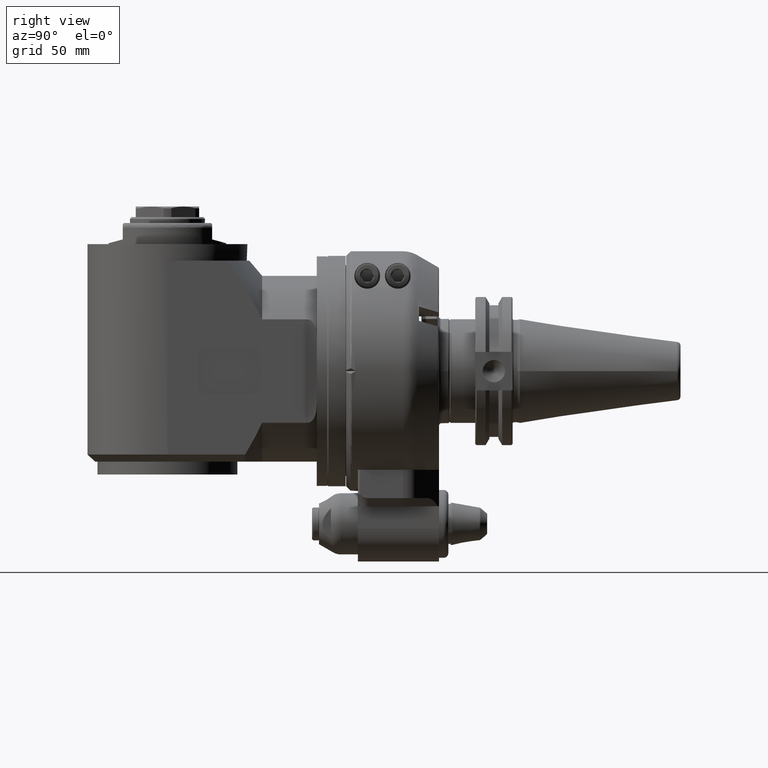
[diagram: clean part render]
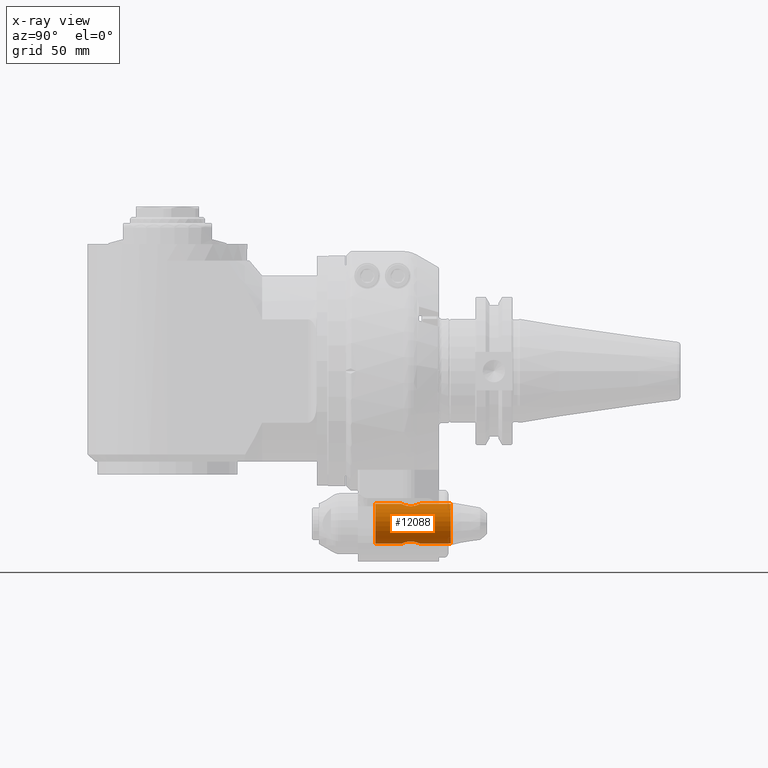
[diagram: x-ray — body ghosted, one internal face saturated and labeled with its STEP entity id]
A machine part, right view, then the same camera in x-ray: the body is ghosted and one INTERNAL B-rep face — a face not visible from any outside direction — is saturated and labeled: STEP entity #12088.
In plain terms, the highlighted cylindrical surface (bore or boss wall) has radius 8.5 mm, axis along (-0, 1, -0).
Its self-contained STEP definition (entity closure, byte-faithful):
#250=B_SPLINE_CURVE_WITH_KNOTS('',3,(#21699,#21700,#21701,#21702,#21703,
#21704,#21705,#21706,#21707,#21708),.UNSPECIFIED.,.F.,.F.,(4,2,2,2,4),(0.613430912820706,
0.766629647538083,0.919828382255461,1.07334510394844,1.22686182564141),
 .UNSPECIFIED.);
#251=B_SPLINE_CURVE_WITH_KNOTS('',3,(#21710,#21711,#21712,#21713,#21714,
#21715,#21716,#21717,#21718,#21719),.UNSPECIFIED.,.F.,.F.,(4,2,2,2,4),(-1.22686182564141,
-1.07334510394844,-0.919828382255461,-0.766629647538084,-0.613430912820706),
 .UNSPECIFIED.);
#252=B_SPLINE_CURVE_WITH_KNOTS('',3,(#21721,#21722,#21723,#21724,#21725,
#21726,#21727,#21728,#21729,#21730,#21731,#21732,#21733,#21734,#21735,#21736,
#21737,#21738,#21739),.UNSPECIFIED.,.F.,.F.,(4,2,2,2,3,2,2,2,4),(-0.613430912820706,
-0.460232178103329,-0.307033443385951,-0.153516721692975,0.,0.153516721692975,
0.307033443385951,0.460232178103328,0.613430912820706),.UNSPECIFIED.);
#253=B_SPLINE_CURVE_WITH_KNOTS('',3,(#21741,#21742,#21743,#21744,#21745,
#21746,#21747,#21748,#21749,#21750,#21751,#21752,#21753,#21754,#21755,#21756,
#21757,#21758,#21759,#21760,#21761,#21762,#21763,#21764,#21765,#21766,#21767,
#21768,#21769,#21770,#21771,#21772,#21773,#21774),.UNSPECIFIED.,.T.,.F.,
(4,2,2,2,2,2,2,2,2,2,2,2,2,2,2,2,4),(-2.45372365128282,-2.30020692958985,
-2.14669020789687,-1.9934914731795,-1.84029273846212,-1.68709400374474,
-1.53389526902736,-1.38037854733439,-1.22686182564141,-1.07334510394844,
-0.919828382255461,-0.766629647538084,-0.613430912820706,-0.460232178103329,
-0.307033443385951,-0.153516721692975,0.),.UNSPECIFIED.);
#1293=LINE('',#21697,#2067);
#1294=LINE('',#21720,#2068);
#2067=VECTOR('',#17116,8.5);
#2068=VECTOR('',#17117,8.5);
#2293=CYLINDRICAL_SURFACE('',#13573,8.5);
#2427=FACE_BOUND('',#3963,.T.);
#3116=FACE_OUTER_BOUND('',#3962,.T.);
#3962=EDGE_LOOP('',(#10801,#10802,#10803,#10804,#10805,#10806,#10807,#10808,
#10809));
#3963=EDGE_LOOP('',(#10810));
#4703=CIRCLE('',#13572,8.5);
#4704=CIRCLE('',#13574,8.5);
#5808=VERTEX_POINT('',#21691);
#5809=VERTEX_POINT('',#21694);
#5810=VERTEX_POINT('',#21696);
#5811=VERTEX_POINT('',#21698);
#5812=VERTEX_POINT('',#21709);
#5813=VERTEX_POINT('',#21740);
#7493=EDGE_CURVE('',#5808,#5808,#4703,.T.);
#7494=EDGE_CURVE('',#5809,#5809,#4704,.T.);
#7495=EDGE_CURVE('',#5809,#5810,#1293,.T.);
#7496=EDGE_CURVE('',#5811,#5810,#250,.F.);
#7497=EDGE_CURVE('',#5812,#5811,#251,.F.);
#7498=EDGE_CURVE('',#5812,#5808,#1294,.T.);
#7499=EDGE_CURVE('',#5810,#5812,#252,.F.);
#7500=EDGE_CURVE('',#5813,#5813,#253,.F.);
#10801=ORIENTED_EDGE('',*,*,#7494,.F.);
#10802=ORIENTED_EDGE('',*,*,#7495,.T.);
#10803=ORIENTED_EDGE('',*,*,#7496,.F.);
#10804=ORIENTED_EDGE('',*,*,#7497,.F.);
#10805=ORIENTED_EDGE('',*,*,#7498,.T.);
#10806=ORIENTED_EDGE('',*,*,#7493,.F.);
#10807=ORIENTED_EDGE('',*,*,#7498,.F.);
#10808=ORIENTED_EDGE('',*,*,#7499,.F.);
#10809=ORIENTED_EDGE('',*,*,#7495,.F.);
#10810=ORIENTED_EDGE('',*,*,#7500,.F.);
#12088=ADVANCED_FACE('',(#3116,#2427),#2293,.T.);
#13572=AXIS2_PLACEMENT_3D('',#21692,#17110,#17111);
#13573=AXIS2_PLACEMENT_3D('',#21693,#17112,#17113);
#13574=AXIS2_PLACEMENT_3D('',#21695,#17114,#17115);
#17110=DIRECTION('center_axis',(0.,-1.,0.));
#17111=DIRECTION('ref_axis',(0.,0.,-1.));
#17112=DIRECTION('center_axis',(0.,1.,0.));
#17113=DIRECTION('ref_axis',(0.,0.,-1.));
#17114=DIRECTION('center_axis',(0.,1.,0.));
#17115=DIRECTION('ref_axis',(0.,0.,1.));
#17116=DIRECTION('',(0.,-1.,0.));
#17117=DIRECTION('',(0.,-1.,0.));
#21691=CARTESIAN_POINT('',(1.04094977927525E-15,12.5,-56.5));
#21692=CARTESIAN_POINT('Origin',(0.,12.5,-65.));
#21693=CARTESIAN_POINT('Origin',(0.,-3.0000024,-65.));
#21694=CARTESIAN_POINT('',(1.04094977927525E-15,44.5,-56.5));
#21695=CARTESIAN_POINT('Origin',(0.,44.5,-65.));
#21696=CARTESIAN_POINT('',(7.98030645793914E-16,31.5,-56.5));
#21697=CARTESIAN_POINT('',(1.04094977927525E-15,-3.0000024,-56.5));
#21698=CARTESIAN_POINT('',(4.,27.5,-57.5));
#21699=CARTESIAN_POINT('Ctrl Pts',(5.55111512312578E-16,31.5,-56.5));
#21700=CARTESIAN_POINT('Ctrl Pts',(0.510662449057926,31.5,-56.5));
#21701=CARTESIAN_POINT('Ctrl Pts',(1.05009892728332,31.3963150371534,-56.550307430602));
#21702=CARTESIAN_POINT('Ctrl Pts',(2.03353418176194,30.9855009215929,-56.7317020547219));
#21703=CARTESIAN_POINT('Ctrl Pts',(2.47807547728031,30.6787787722121,-56.8607634394313));
#21704=CARTESIAN_POINT('Ctrl Pts',(3.17950597965918,29.9773482698332,-57.1082736246508));
#21705=CARTESIAN_POINT('Ctrl Pts',(3.48568850685861,29.5330622122315,-57.2442369519195));
#21706=CARTESIAN_POINT('Ctrl Pts',(3.89607388117928,28.5506991349841,-57.4420572899479));
#21707=CARTESIAN_POINT('Ctrl Pts',(4.,28.0117224056433,-57.5));
#21708=CARTESIAN_POINT('Ctrl Pts',(4.,27.5,-57.5));
#21709=CARTESIAN_POINT('',(3.81697011559481E-16,23.5,-56.5));
#21710=CARTESIAN_POINT('Ctrl Pts',(4.,27.5,-57.5));
#21711=CARTESIAN_POINT('Ctrl Pts',(4.,26.9882775943567,-57.5));
#21712=CARTESIAN_POINT('Ctrl Pts',(3.89607388117928,26.4493008650159,-57.4420572899479));
#21713=CARTESIAN_POINT('Ctrl Pts',(3.48568850685861,25.4669377877685,-57.2442369519195));
#21714=CARTESIAN_POINT('Ctrl Pts',(3.17950597965918,25.0226517301668,-57.1082736246508));
#21715=CARTESIAN_POINT('Ctrl Pts',(2.47807547728031,24.3212212277879,-56.8607634394313));
#21716=CARTESIAN_POINT('Ctrl Pts',(2.03353418176194,24.0144990784071,-56.7317020547219));
#21717=CARTESIAN_POINT('Ctrl Pts',(1.05009892728331,23.6036849628466,-56.550307430602));
#21718=CARTESIAN_POINT('Ctrl Pts',(0.510662449057925,23.5,-56.5));
#21719=CARTESIAN_POINT('Ctrl Pts',(-1.38777878078145E-16,23.5,-56.5));
#21720=CARTESIAN_POINT('',(1.04094977927525E-15,-3.0000024,-56.5));
#21721=CARTESIAN_POINT('Ctrl Pts',(-2.77555756156289E-16,23.5,-56.5));
#21722=CARTESIAN_POINT('Ctrl Pts',(-0.510662449057926,23.5,-56.5));
#21723=CARTESIAN_POINT('Ctrl Pts',(-1.05009892728332,23.6036849628466,-56.550307430602));
#21724=CARTESIAN_POINT('Ctrl Pts',(-2.03353418176194,24.0144990784071,-56.7317020547219));
#21725=CARTESIAN_POINT('Ctrl Pts',(-2.47807547728031,24.3212212277879,-56.8607634394313));
#21726=CARTESIAN_POINT('Ctrl Pts',(-3.17950597965918,25.0226517301668,-57.1082736246508));
#21727=CARTESIAN_POINT('Ctrl Pts',(-3.48568850685861,25.4669377877685,-57.2442369519195));
#21728=CARTESIAN_POINT('Ctrl Pts',(-3.89607388117928,26.4493008650159,-57.4420572899479));
#21729=CARTESIAN_POINT('Ctrl Pts',(-4.,26.9882775943567,-57.5));
#21730=CARTESIAN_POINT('Ctrl Pts',(-4.,27.5,-57.5));
#21731=CARTESIAN_POINT('Ctrl Pts',(-4.,28.0117224056433,-57.5));
#21732=CARTESIAN_POINT('Ctrl Pts',(-3.89607388117928,28.5506991349841,-57.4420572899479));
#21733=CARTESIAN_POINT('Ctrl Pts',(-3.48568850685861,29.5330622122315,-57.2442369519195));
#21734=CARTESIAN_POINT('Ctrl Pts',(-3.17950597965918,29.9773482698332,-57.1082736246508));
#21735=CARTESIAN_POINT('Ctrl Pts',(-2.47807547728031,30.6787787722121,-56.8607634394313));
#21736=CARTESIAN_POINT('Ctrl Pts',(-2.03353418176194,30.9855009215929,-56.7317020547219));
#21737=CARTESIAN_POINT('Ctrl Pts',(-1.05009892728331,31.3963150371534,-56.550307430602));
#21738=CARTESIAN_POINT('Ctrl Pts',(-0.510662449057925,31.5,-56.5));
#21739=CARTESIAN_POINT('Ctrl Pts',(5.55111512312578E-16,31.5,-56.5));
#21740=CARTESIAN_POINT('',(4.,27.5,-72.5));
#21741=CARTESIAN_POINT('Ctrl Pts',(-4.,27.5,-72.5));
#21742=CARTESIAN_POINT('Ctrl Pts',(-4.,26.9882775943568,-72.5));
#21743=CARTESIAN_POINT('Ctrl Pts',(-3.89607388117928,26.4493008650159,-72.5579427100521));
#21744=CARTESIAN_POINT('Ctrl Pts',(-3.48568850685861,25.4669377877685,-72.7557630480805));
#21745=CARTESIAN_POINT('Ctrl Pts',(-3.17950597965918,25.0226517301668,-72.8917263753492));
#21746=CARTESIAN_POINT('Ctrl Pts',(-2.47807547728031,24.3212212277879,-73.1392365605687));
#21747=CARTESIAN_POINT('Ctrl Pts',(-2.03353418176194,24.0144990784071,-73.2682979452781));
#21748=CARTESIAN_POINT('Ctrl Pts',(-1.05009892728332,23.6036849628466,-73.449692569398));
#21749=CARTESIAN_POINT('Ctrl Pts',(-0.510662449057925,23.5,-73.5));
#21750=CARTESIAN_POINT('Ctrl Pts',(0.510662449057925,23.5,-73.5));
#21751=CARTESIAN_POINT('Ctrl Pts',(1.05009892728331,23.6036849628466,-73.449692569398));
#21752=CARTESIAN_POINT('Ctrl Pts',(2.03353418176194,24.0144990784071,-73.2682979452781));
#21753=CARTESIAN_POINT('Ctrl Pts',(2.47807547728031,24.3212212277879,-73.1392365605687));
#21754=CARTESIAN_POINT('Ctrl Pts',(3.17950597965918,25.0226517301668,-72.8917263753492));
#21755=CARTESIAN_POINT('Ctrl Pts',(3.48568850685861,25.4669377877685,-72.7557630480805));
#21756=CARTESIAN_POINT('Ctrl Pts',(3.89607388117928,26.4493008650159,-72.5579427100521));
#21757=CARTESIAN_POINT('Ctrl Pts',(4.,26.9882775943567,-72.5));
#21758=CARTESIAN_POINT('Ctrl Pts',(4.,28.0117224056433,-72.5));
#21759=CARTESIAN_POINT('Ctrl Pts',(3.89607388117927,28.5506991349841,-72.5579427100521));
#21760=CARTESIAN_POINT('Ctrl Pts',(3.4856885068586,29.5330622122315,-72.7557630480805));
#21761=CARTESIAN_POINT('Ctrl Pts',(3.17950597965918,29.9773482698332,-72.8917263753492));
#21762=CARTESIAN_POINT('Ctrl Pts',(2.47807547728031,30.6787787722121,-73.1392365605687));
#21763=CARTESIAN_POINT('Ctrl Pts',(2.03353418176194,30.9855009215929,-73.2682979452781));
#21764=CARTESIAN_POINT('Ctrl Pts',(1.05009892728332,31.3963150371534,-73.449692569398));
#21765=CARTESIAN_POINT('Ctrl Pts',(0.510662449057926,31.5,-73.5));
#21766=CARTESIAN_POINT('Ctrl Pts',(-0.510662449057925,31.5,-73.5));
#21767=CARTESIAN_POINT('Ctrl Pts',(-1.05009892728331,31.3963150371534,-73.449692569398));
#21768=CARTESIAN_POINT('Ctrl Pts',(-2.03353418176194,30.9855009215929,-73.2682979452781));
#21769=CARTESIAN_POINT('Ctrl Pts',(-2.47807547728031,30.6787787722121,-73.1392365605687));
#21770=CARTESIAN_POINT('Ctrl Pts',(-3.17950597965918,29.9773482698332,-72.8917263753492));
#21771=CARTESIAN_POINT('Ctrl Pts',(-3.48568850685861,29.5330622122315,-72.7557630480805));
#21772=CARTESIAN_POINT('Ctrl Pts',(-3.89607388117928,28.5506991349841,-72.5579427100521));
#21773=CARTESIAN_POINT('Ctrl Pts',(-4.,28.0117224056433,-72.5));
#21774=CARTESIAN_POINT('Ctrl Pts',(-4.,27.5,-72.5));